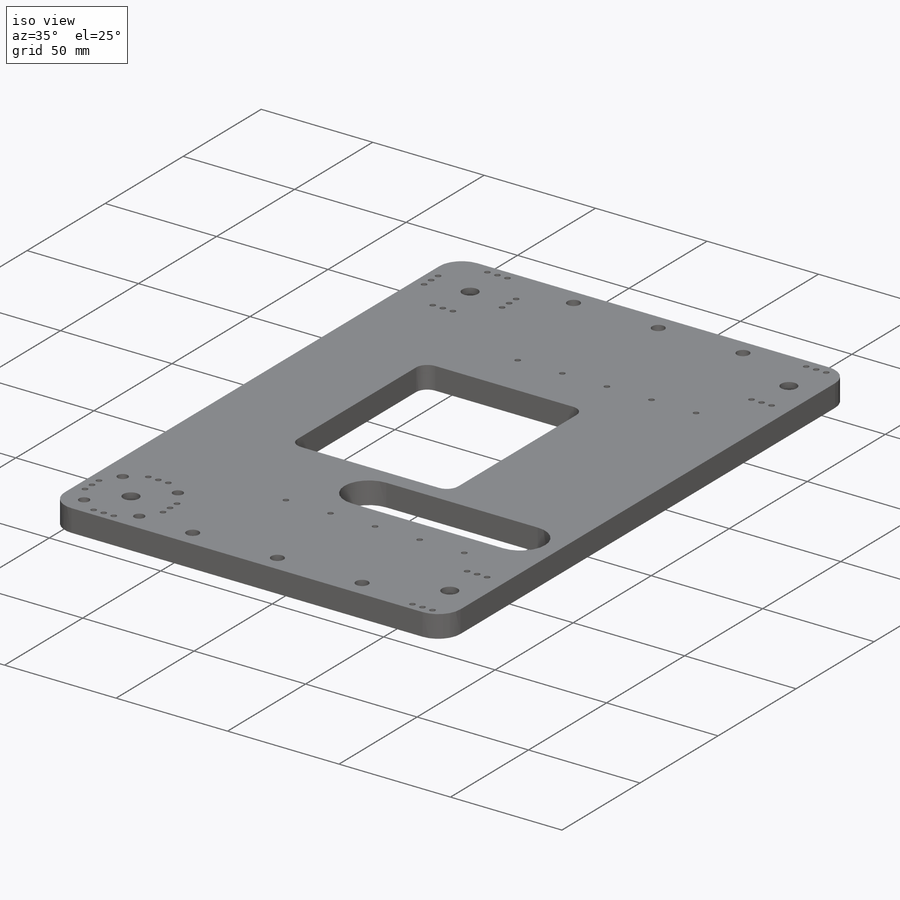
[diagram: iso view]
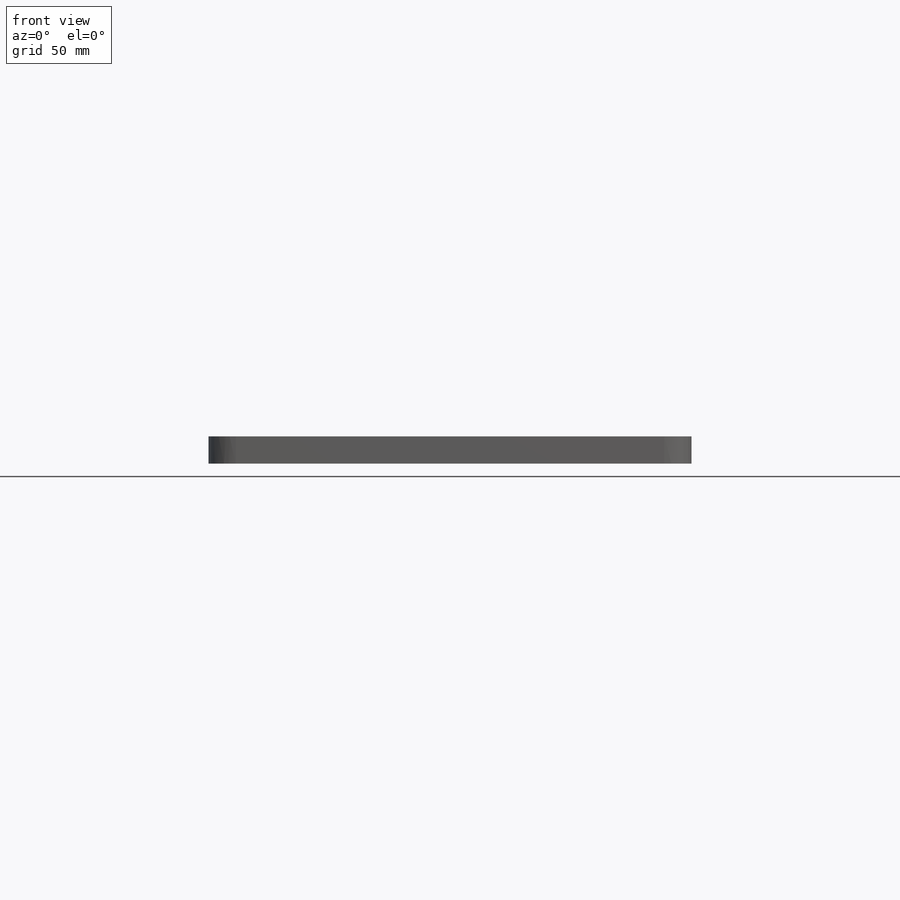
[diagram: front view]
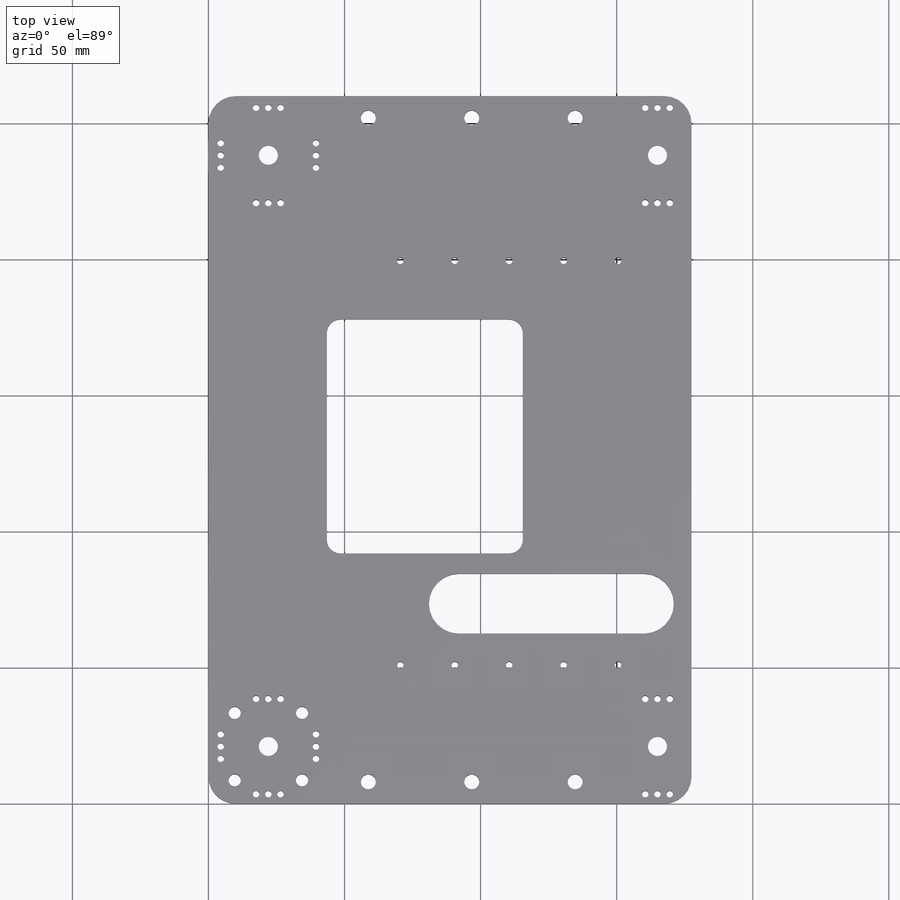
[diagram: top view]
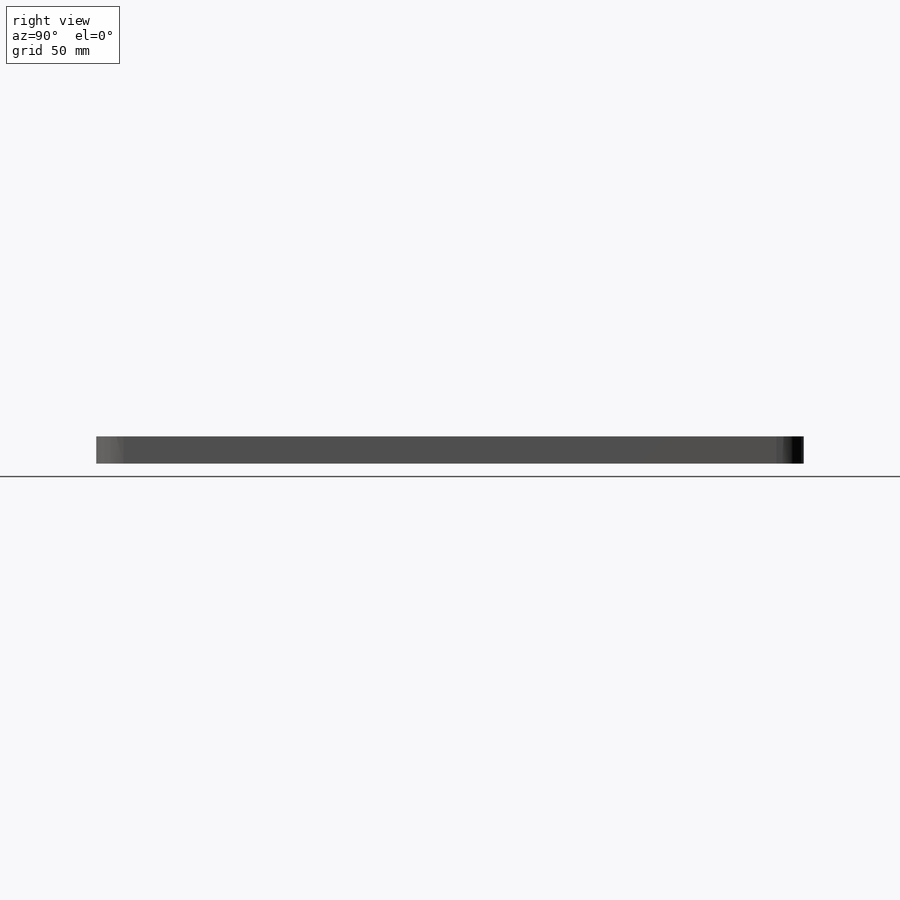
[diagram: right view]
SOLIDWORKS PART (.sldprt)
format: sldprt  version: not decoded by parser v0  size: 665,088 bytes
history: native  units: mm
features: sketch x15, hole x5, cut_extrude x4, material x1, extrude x1 (+16 scaffold rows collapsed)
feature tree (42):
  scaffold x16  (default folders/planes/origin — collapsed)
  material  "Material <not specified>"
  sketch  "Sketch1"  dims[c1.D3=10.0mm c1.D9=5.0mm c1.D10=5.0mm c1.D15=6.0mm c1.D16=8.0mm c1.D5=19.0mm c1.D8=5.0mm c2.D9=6.0mm c2.D1=177.5mm c2.D2=260.0mm c2.D4=20.0mm c2.D5=100.0mm c2.D6=60.0mm c2.D7=130.0mm c2.D10=5.0mm c2.D11=5.0mm c3.D9=60.0mm c3.D14=20.0mm c3.D16=12.0mm c3.D4=40.0mm c3.D5=40.0mm c3.D6=86.0mm c3.D7=72.0mm c4.D4=104.97mm c4.D9=70.0mm c4.D10=65.0mm c4.D11=65.0mm c4.D12=37.97mm c5.D11=12.5mm c5.D13=77.5mm c5.D10=90.0mm c5.D14=125.94mm c5.D4=151.94mm c5.D5=300.0mm c6.D4=125.06mm c6.D5=79.5mm c6.D8=10.0mm c6.D13=10.0mm]
  extrude  "Boss-Extrude1"  Depth=10mm
  sketch  "Sketch3"  dims[c1.D2=8.0mm c1.D4=5.0mm c1.D5=5.0mm c2.D4=5.5mm c2.D2=8.0mm c2.D1=20.0mm c3.D2=20.0mm c3.D1=10.0mm c4.D2=5.0mm c4.D3=20.0mm c4.D4=20.0mm c4.D5=70.0mm c4.D1=70.0mm c5.D2=25.0mm c5.D3=22.0mm c5.D4=68.0mm c6.D2=5.0mm c6.D1=61.48mm c7.D2=17.5mm]
  cut_extrude  "Cut-Extrude2"  [1 undecoded]
  sketch  "Sketch5"  dims[c1.D1=19.0mm c1.D2=19.0mm c1.D5=19.0mm c1.D4=19.0mm c2.D2=17.5mm c2.D1=12.5mm c3.D2=135.0mm c3.D3=192.94mm c3.D4=37.97mm c3.D1=12.5mm c4.D2=135.0mm c4.D4=37.97mm c4.D3=217.26mm c5.D4=20.97mm c5.D2=22.0mm]
  cut_extrude  "Cut-Extrude4"  Depth=6.5mm
  sketch  "Sketch7"  dims[D1=16.0mm]
  cut_extrude  "Cut-Extrude5"  Depth=1mm
  sketch  "Sketch8"  dims[D1=7.0mm]
  cut_extrude  "Cut-Extrude6"  [1 undecoded]
  hole  "M4 Clearance Hole1"  Diameter=4.5mm Depth=10mm
  sketch  "Sketch11"  dims[D1=35.0mm]
  sketch  "Sketch10"  dims[hole-wizard template sketch: 60 standard entries collapsed; hole parameters kept: c18.Thru Hole Depth=10.0mm]
  hole  "M2 Clearance Hole1"  Diameter=2.4mm Depth=10mm
  sketch  "Sketch14"  dims[c1.D1=65.94mm c1.D2=27.0mm c1.D3=20.0mm c1.D4=20.0mm c2.D3=20.0mm c2.D4=20.0mm c2.D5=20.0mm c2.D6=20.0mm c2.D7=76.06mm c2.D8=74.25mm c2.D9=148.5mm c3.D7=86.0mm c3.D1=83.98mm c4.D7=64.52mm]
  sketch  "Sketch13"  dims[hole-wizard template sketch: 60 standard entries collapsed; hole parameters kept: c18.Thru Hole Depth=10.0mm]
  hole  "M2 Clearance Hole2"  Diameter=2.4mm Depth=10mm
  sketch  "Sketch16"  dims[c1.D5=7.0mm c1.D1=8.0mm c1.D2=3.47mm c1.D3=4.5mm c1.D4=4.5mm c2.D5=4.5mm c2.D6=4.5mm c2.D7=4.5mm c2.D8=33.47mm c3.D5=17.5mm c3.D6=4.5mm c3.D8=4.5mm]
  sketch  "Sketch15"  dims[hole-wizard template sketch: 60 standard entries collapsed; hole parameters kept: c18.Thru Hole Depth=10.0mm]
  hole  "CSK for M2 Countersunk Flat Head Screw1"  Diameter=2.4mm Depth=10mm
  sketch  "Sketch20"  dims[D1=4.5mm D2=4.5mm D3=4.5mm]
  sketch  "Sketch19"  dims[hole-wizard template sketch: 55 standard entries collapsed; hole parameters kept: c17.Thru Hole Depth=10.0mm c17.Near C'Sink Dia.=4.4mm c17.D4=~3.666174mm c17.Near C'Sink Angle=90.0deg]
  hole  "M5 Clearance Hole1"  Diameter=5.5mm Depth=10mm
  sketch  "Sketch23"  dims[D1=8.0mm D2=58.75mm D3=38.0mm D4=38.0mm]
  sketch  "Sketch22"  dims[hole-wizard template sketch: 60 standard entries collapsed; hole parameters kept: c18.Thru Hole Depth=10.0mm]
decode coverage: 23 of 25 modeling features carry decoded parameters
note: ~ marks probable driven/reference dimensions
note: 2 parameter values undecoded
summary: Diameter pulled from absorbed wizard sketch
note: suppression state not decoded; provenance and decode notes live in map.json
